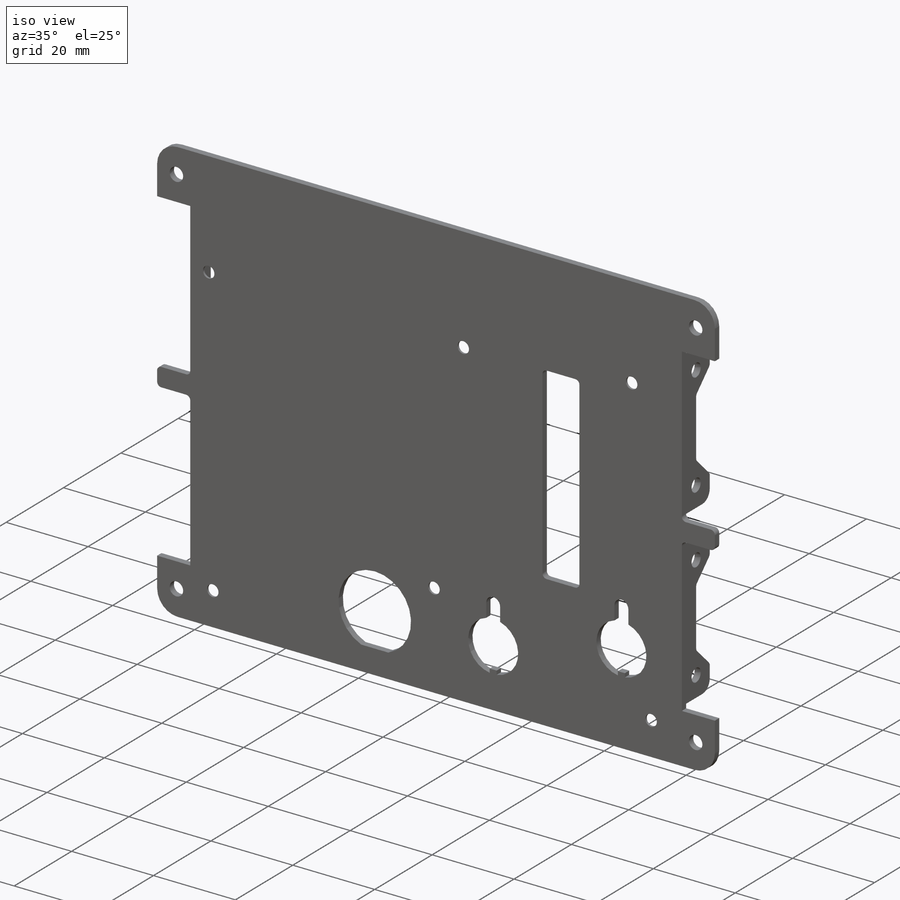
[diagram: iso view]
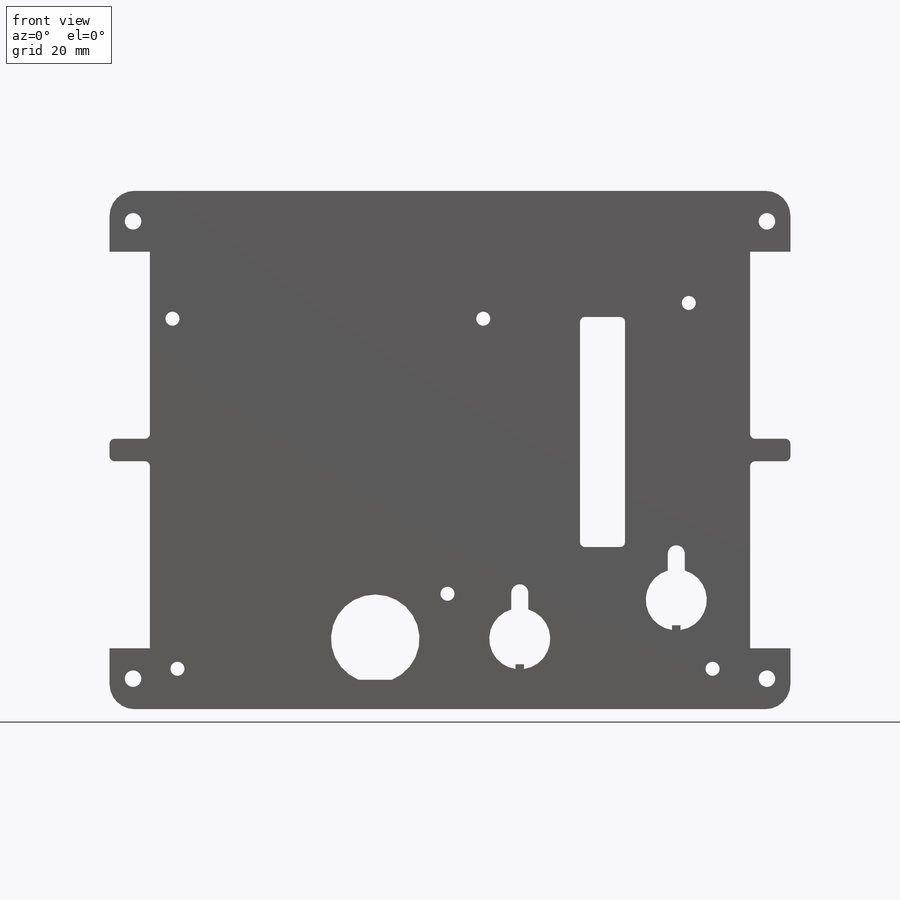
[diagram: front view]
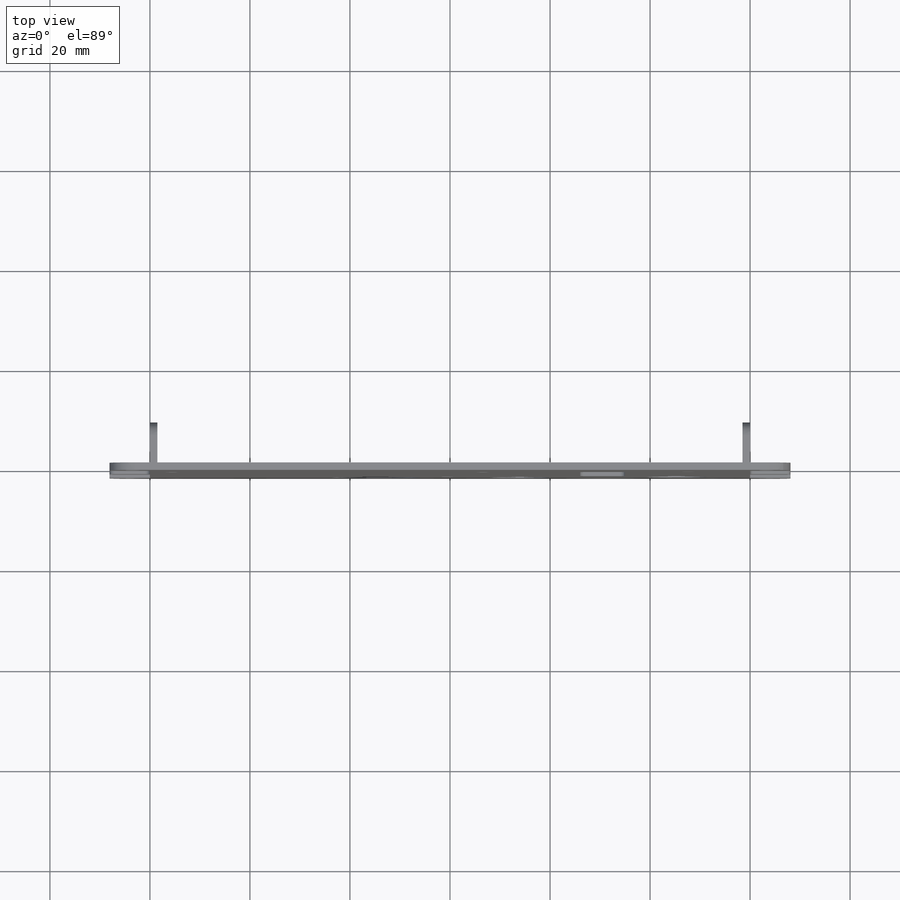
[diagram: top view]
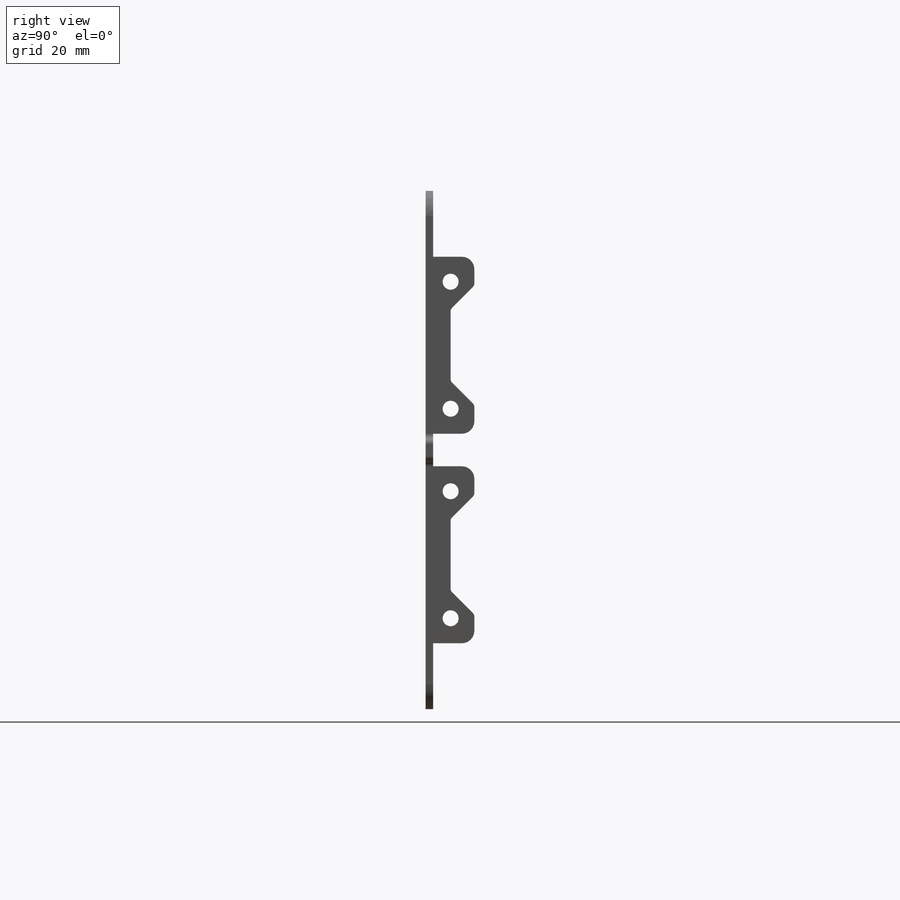
[diagram: right view]
SOLIDWORKS PART (.sldprt)
format: sldprt  version: not decoded by parser v0  size: 771,072 bytes
history: native  units: mm
features: sketch x25, cut_extrude x12, extrude x5, plane x4, hole x4, fillet x3, material x1 (+9 scaffold rows collapsed)
feature tree (63):
  scaffold x9  (default folders/planes/origin — collapsed)
  material  "Materiál <není určen>"
  plane  "Přední rovina"
  plane  "Horní rovina"
  plane  "Pravá rovina"
  plane  "Rovina1"
  sketch  "Skica1"
  extrude  "Přidat vysunutím1"  Depth=1.5mm
  sketch  "Skica2"
  cut_extrude  "Odebrat vysunutím1"  Depth=1.5mm
  sketch  "Skica3"
  cut_extrude  "Odebrat vysunutím2"  Depth=1.5mm
  sketch  "Skica4"
  cut_extrude  "Odebrat vysunutím3"  Depth=1.5mm
  sketch  "Skica5"
  extrude  "Přidat vysunutím2"  Depth=8.25mm
  sketch  "Skica6"
  cut_extrude  "Odebrat vysunutím4"  Depth=1.5mm
  sketch  "Skica7"
  extrude  "Přidat vysunutím3"  Depth=8.25mm
  sketch  "Skica8"
  cut_extrude  "Odebrat vysunutím5"  Depth=1.5mm
  sketch  "Skica9"
  extrude  "Přidat vysunutím4"  Depth=8.25mm
  sketch  "Skica10"
  cut_extrude  "Odebrat vysunutím6"  Depth=1.5mm
  sketch  "Skica11"
  cut_extrude  "Odebrat vysunutím7"  Depth=1.5mm
  sketch  "Skica12"
  extrude  "Přidat vysunutím5"  Depth=8.25mm
  sketch  "Skica13"
  cut_extrude  "Odebrat vysunutím8"  Depth=1.5mm
  sketch  "Skica14"
  cut_extrude  "Odebrat vysunutím9"  Depth=1.5mm
  sketch  "Skica15"
  cut_extrude  "Odebrat vysunutím10"  Depth=1.5mm
  sketch  "Skica16"
  cut_extrude  "Odebrat vysunutím11"  Depth=1.5mm
  sketch  "Skica17"
  cut_extrude  "Odebrat vysunutím12"  Depth=1.5mm
  hole  "Ø3.3 (3.3) průměr díry1"  Diameter=3.3mm Depth=1.5mm
  sketch  "Skica19"
  sketch  "Skica18"  dims[hole-wizard template sketch: 59 standard entries collapsed; hole parameters kept: c18.Průměr díry skrz=3.3mm c18.Hloubka díry skrz=1.5mm]
  hole  "Ø3.2 (3.2) průměr díry1"  Diameter=3.2mm Depth=1.5mm
  sketch  "Skica21"
  sketch  "Skica20"  dims[hole-wizard template sketch: 59 standard entries collapsed; hole parameters kept: c18.Průměr díry skrz=3.2mm c18.Hloubka díry skrz=1.5mm]
  hole  "Ø3.2 (3.2) průměr díry2"  Diameter=3.2mm Depth=128.075mm
  sketch  "Skica23"
  sketch  "Skica22"  dims[hole-wizard template sketch: 59 standard entries collapsed; hole parameters kept: c18.Průměr díry skrz=3.2mm c18.Hloubka díry skrz=128.075mm]
  hole  "Válcové zahloubení pro M2.5 šrouby s plochou hlavou1"  Diameter=2.8mm Depth=1.5mm
  sketch  "Skica25"
  sketch  "Skica24"  dims[hole-wizard template sketch: 54 standard entries collapsed; hole parameters kept: c17.Průměr díry skrz=2.8mm c17.Hloubka díry skrz=1.5mm c17.Průměr blíz. kuž. zahloubení=4.8mm c17.D4=~3.666174mm c17.Úhel blíz. kuž. zahloubení=90.0deg]
  fillet  "Zaoblit1"  Radius=1mm
  fillet  "Zaoblit2"  Radius=2.5mm
  fillet  "Zaoblit3"  Radius=5mm
decode coverage: 28 of 49 modeling features carry decoded parameters
note: ~ marks probable driven/reference dimensions
summary: Diameter pulled from absorbed wizard sketch
note: suppression state not decoded; provenance and decode notes live in map.json
